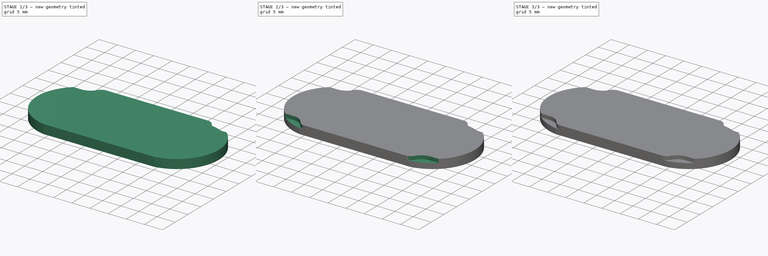
[diagram: build sequence overview — one tinted view per stage of 3, left to right]
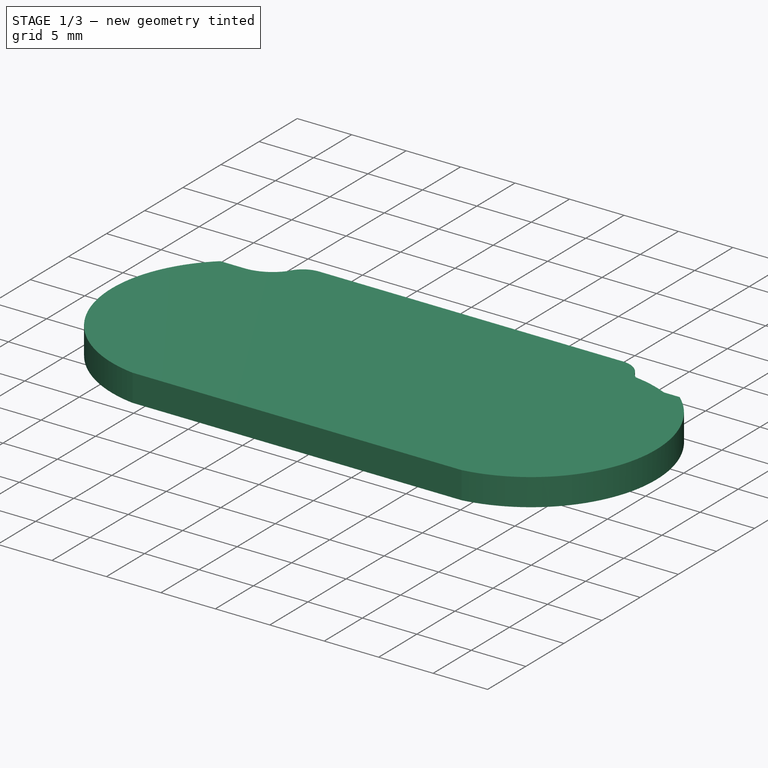
[diagram: stage 1 of 3 — iso view after this stage's code; geometry added in this stage tinted green]
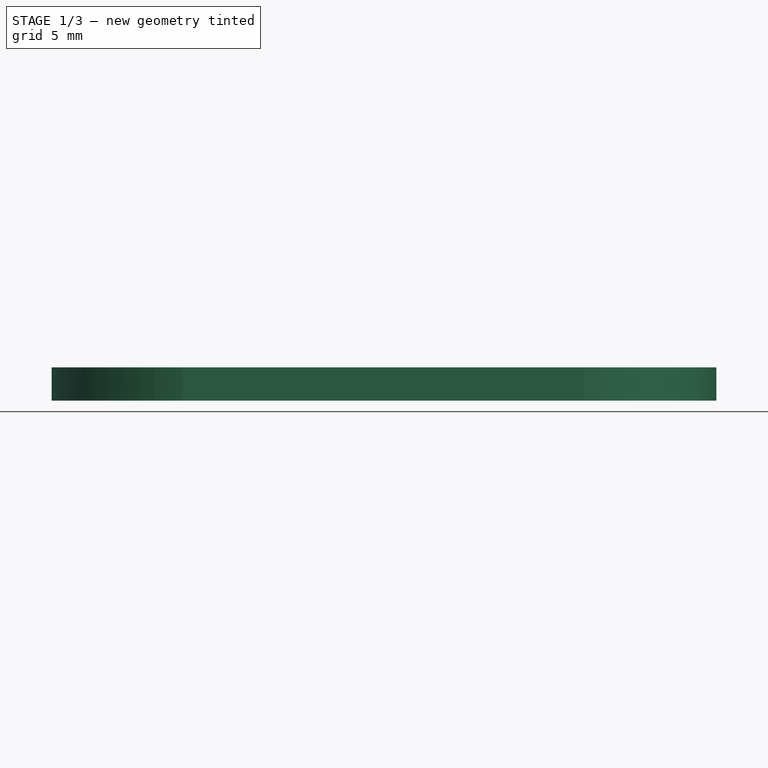
[diagram: stage 1 of 3 — front view after this stage's code; geometry added in this stage tinted green]
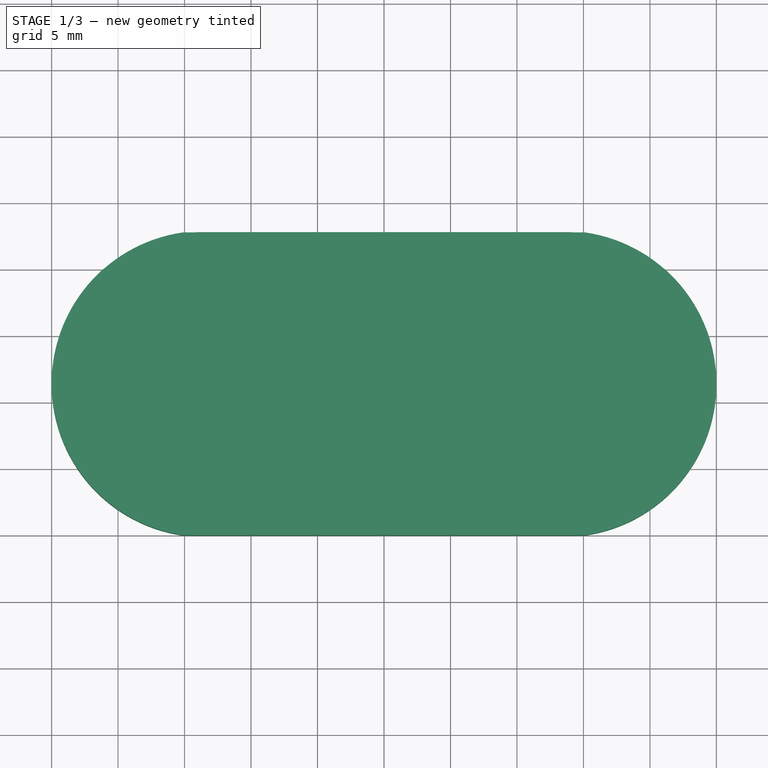
[diagram: stage 1 of 3 — top view after this stage's code; geometry added in this stage tinted green]
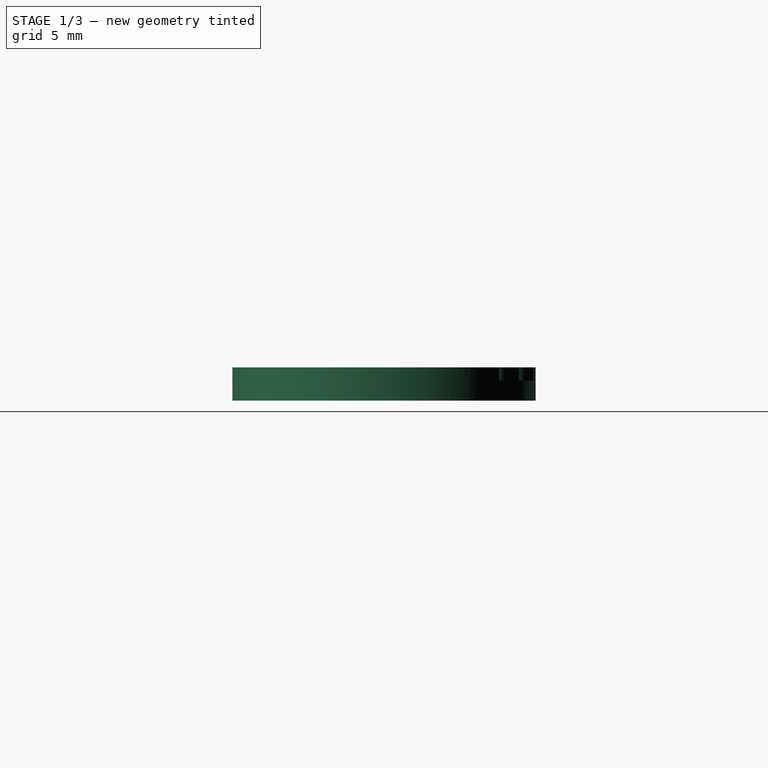
[diagram: stage 1 of 3 — right view after this stage's code; geometry added in this stage tinted green]
FCSTD DOCUMENT  (FreeCAD 0.20R29177 +426 (Git))
Label: Vita Icon
License: All rights reserved
LicenseURL: http://en.wikipedia.org/wiki/All_rights_reserved
objects: Sketcher::SketchObject×6, PartDesign::Pocket×5, PartDesign::Body×2, PartDesign::Pad×1, App::Part×1, PartDesign::FeatureBase×1
note: 21 computed .brp shape members not serialized (recipe doc carries the construction recipe); baked Part::Feature solids carry a one-line shape summary decoded from their .brp

FEATURE [Sketcher::SketchObject] Sketch
  FullyConstrained = true
  MapMode = 5
  Support = -> [XY_Plane]
  sketch-geometry (10):
    g0: LineSegment StartX=0 StartY=0 StartZ=0 EndX=50 EndY=0 EndZ=0
    g1: LineSegment StartX=50 StartY=0 StartZ=0 EndX=50 EndY=22.8 EndZ=0
    g2: LineSegment StartX=50 StartY=22.8 StartZ=0 EndX=0 EndY=22.8 EndZ=0
    g3: LineSegment StartX=0 StartY=22.8 StartZ=0 EndX=0 EndY=0 EndZ=0
    g4: ArcOfCircle CenterX=38.4847 CenterY=11.4 CenterZ=0 NormalX=0 NormalY=0 NormalZ=1 AngleXU=0 Radius=11.5153 StartAngle=4.854 EndAngle=7.71237
    g5: ArcOfCircle CenterX=11.5153 CenterY=11.4 CenterZ=0 NormalX=0 NormalY=0 NormalZ=1 AngleXU=0 Radius=11.5153 StartAngle=1.71241 EndAngle=4.57078
    g6: LineSegment StartX=9.89 StartY=22.8 StartZ=0 EndX=40.11 EndY=22.8 EndZ=0
    g7: LineSegment StartX=40.11 StartY=0 StartZ=0 EndX=9.89 EndY=0 EndZ=0
    g8: LineSegment StartX=9.89 StartY=22.8 StartZ=0 EndX=9.89 EndY=0 EndZ=0
    g9: LineSegment StartX=40.11 StartY=0 StartZ=0 EndX=40.11 EndY=22.8 EndZ=0
  constraints (29):
    c: Coincident(g0,g1)
    c: Coincident(g1,g2)
    c: Coincident(g2,g3)
    c: Coincident(g3,g0)
    c: Horizontal(g0)
    c: Horizontal(g2)
    c: Vertical(g1)
    c: Vertical(g3)
    c: Coincident(g0,g-1)
    c: Distance(g0) = 50
    c: Distance(g1) = 22.8
    c: PointOnObject(g4,g2)
    c: PointOnObject(g4,g0)
    c: Tangent(g4,g1)
    c: PointOnObject(g5,g2)
    c: PointOnObject(g5,g0)
    c: Tangent(g5,g3)
    c: Coincident(g6,g5)
    c: Coincident(g6,g4)
    c: Coincident(g7,g4)
    c: Coincident(g7,g5)
    c: Equal(g5,g4)
    c: Distance(g6) = 30.22
    c: Equal(g6,g7)
    c: Coincident(g8,g5)
    c: Coincident(g8,g5)
    c: Coincident(g9,g4)
    c: Coincident(g9,g4)
    c: Vertical(g8)
FEATURE [PartDesign::Pad] Pad
  Direction = (0,0,1)
  Length = 2.5
  Length2 = 10
  Profile = -> Sketch
  ReferenceAxis = -> Sketch [N_Axis]
  Type = 0
FEATURE [Sketcher::SketchObject] Sketch002
  ExternalGeometry = -> [Pad]
  FullyConstrained = true
  MapMode = 5
  Placement = pos=(0,0,2.5) rot=(0,0,1;0rad)
  Support = -> [Pad]
  sketch-geometry (20):
    g0: LineSegment StartX=9.89 StartY=22.8 StartZ=0 EndX=0 EndY=22.8 EndZ=0
    g1: LineSegment StartX=0 StartY=22.8 StartZ=0 EndX=0 EndY=0 EndZ=0
    g2: LineSegment StartX=0 StartY=0 StartZ=0 EndX=9.89 EndY=0 EndZ=0
    g3: LineSegment StartX=40.11 StartY=0 StartZ=0 EndX=50 EndY=0 EndZ=0
    g4: LineSegment StartX=50 StartY=0 StartZ=0 EndX=50 EndY=22.8 EndZ=0
    g5: LineSegment StartX=40.11 StartY=22.8 StartZ=0 EndX=50 EndY=22.8 EndZ=0
    g6: LineSegment StartX=46.0826 StartY=22.8 StartZ=0 EndX=46.0826 EndY=20.053 EndZ=0
    g7: LineSegment StartX=46.0826 StartY=20.053 StartZ=0 EndX=43.8846 EndY=20.053 EndZ=0
    g8: LineSegment StartX=43.8846 StartY=20.053 StartZ=0 EndX=38.9396 EndY=20.053 EndZ=0
    g9: LineSegment StartX=40.11 StartY=22.8 StartZ=0 EndX=38.9396 EndY=22.8 EndZ=0
    g10: LineSegment StartX=38.9396 StartY=22.8 StartZ=0 EndX=38.9396 EndY=20.053 EndZ=0
    g11: ArcOfCircle CenterX=43.8846 CenterY=23.786 CenterZ=0 NormalX=0 NormalY=0 NormalZ=1 AngleXU=0 Radius=3.733 StartAngle=3.78606 EndAngle=4.71239
    g12: ArcOfCircle CenterX=38.9396 CenterY=20.642 CenterZ=0 NormalX=0 NormalY=0 NormalZ=1 AngleXU=0 Radius=2.158 StartAngle=0.430874 EndAngle=1.5708
    g13: LineSegment StartX=38.9396 StartY=22.8 StartZ=0 EndX=46.0826 EndY=22.8 EndZ=0
    g14: LineSegment StartX=9.89 StartY=22.8 StartZ=0 EndX=11.0604 EndY=22.8 EndZ=0
    g15: LineSegment StartX=11.0604 StartY=22.8 StartZ=0 EndX=3.91744 EndY=22.8 EndZ=0
    g16: LineSegment StartX=3.91744 StartY=22.8 StartZ=0 EndX=3.91744 EndY=20.053 EndZ=0
    g17: LineSegment StartX=3.91744 StartY=20.053 StartZ=0 EndX=6.11544 EndY=20.053 EndZ=0
    g18: ArcOfCircle CenterX=6.11544 CenterY=23.786 CenterZ=0 NormalX=0 NormalY=0 NormalZ=1 AngleXU=0 Radius=3.733 StartAngle=4.71239 EndAngle=5.63872
    g19: ArcOfCircle CenterX=11.0604 CenterY=20.642 CenterZ=0 NormalX=0 NormalY=0 NormalZ=1 AngleXU=0 Radius=2.158 StartAngle=1.5708 EndAngle=2.71072
  constraints (54):
    c: Coincident(g0,g-3)
    c: Horizontal(g0)
    c: Coincident(g1,g0)
    c: Coincident(g1,g-1)
    c: Tangent(g1,g-2)
    c: Coincident(g2,g1)
    c: Coincident(g2,g-3)
    c: Coincident(g3,g-4)
    c: PointOnObject(g3,g-1)
    c: Coincident(g4,g3)
    c: Vertical(g4)
    c: Coincident(g5,g-4)
    c: Coincident(g5,g4)
    c: Horizontal(g5)
    c: Tangent(g-4,g4)
    c: PointOnObject(g6,g5)
    c: PointOnObject(g6,g-4)
    c: Vertical(g6)
    c: Distance(g6) = 2.747
    c: Coincident(g7,g6)
    c: Horizontal(g7)
    c: Distance(g7) = 2.198
    c: Coincident(g8,g7)
    c: Horizontal(g8)
    c: Distance(g8) = 4.945
    c: Coincident(g9,g5)
    c: Horizontal(g9)
    c: Coincident(g10,g9)
    c: Coincident(g10,g8)
    c: Vertical(g10)
    c: Tangent(g12,g9) = -1.5708
    c: Tangent(g11,g7) = 1.5708
    c: Radius(g11) = 3.733
    c: Radius(g12) = 2.158
    c: Coincident(g12,g11)
    c: Coincident(g13,g12)
    c: Coincident(g13,g6)
    c: Coincident(g14,g0)
    c: Horizontal(g14)
    c: Coincident(g15,g14)
    c: PointOnObject(g15,g0)
    c: Coincident(g16,g15)
    c: PointOnObject(g16,g-3)
    c: Vertical(g16)
    c: Coincident(g17,g16)
    c: Horizontal(g17)
    c: Coincident(g19,g18)
    c: Tangent(g19,g15) = -1.5708
    c: Tangent(g18,g17) = -1.5708
    c: Equal(g16,g6)
    c: Equal(g7,g17)
    c: Equal(g15,g13)
    c: Equal(g12,g19)
    c: Equal(g18,g11)
FEATURE [PartDesign::Pocket] Pocket
  BaseFeature = -> Pad
  Direction = (0,0,-1)
  Length = 1
  Length2 = 5
  Profile = -> Sketch002
  ReferenceAxis = -> Sketch002 [N_Axis]
  Type = 0
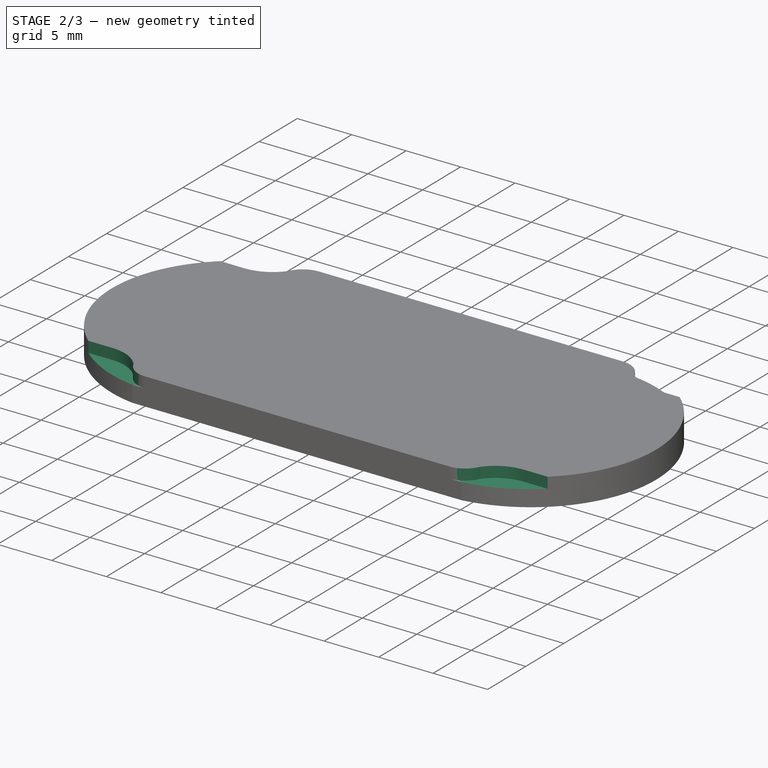
[diagram: stage 2 of 3 — iso view after this stage's code; geometry added in this stage tinted green]
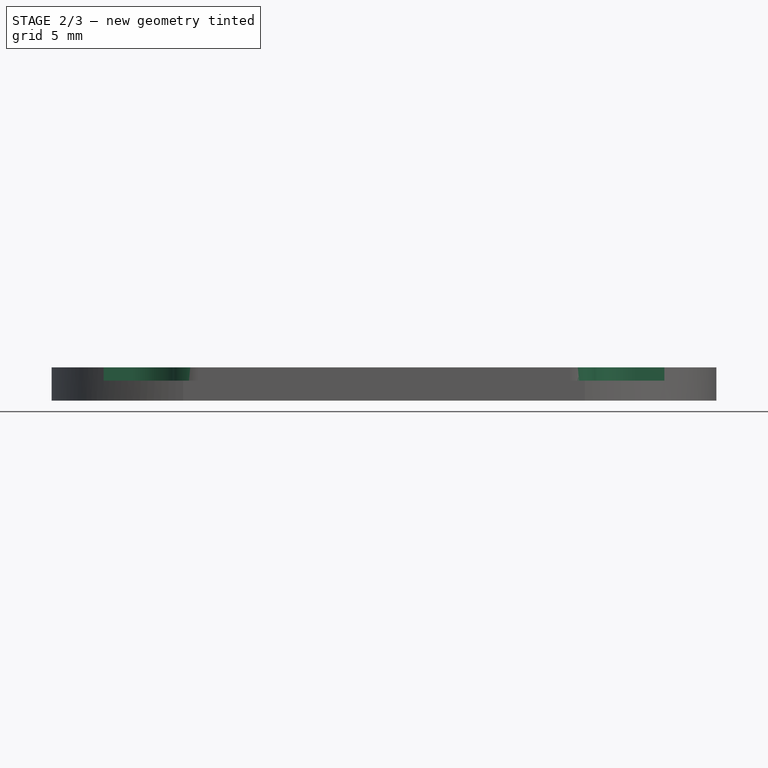
[diagram: stage 2 of 3 — front view after this stage's code; geometry added in this stage tinted green]
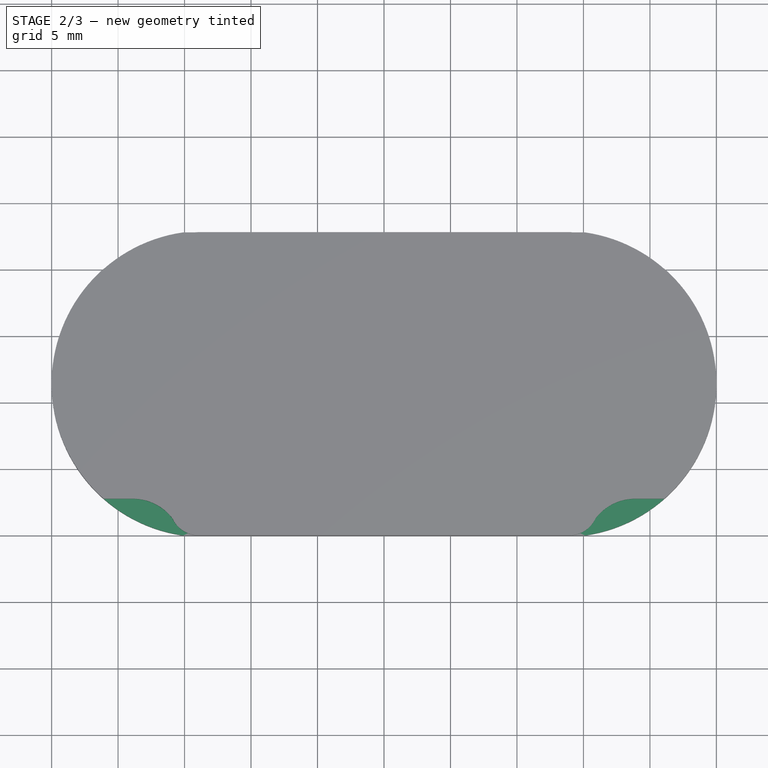
[diagram: stage 2 of 3 — top view after this stage's code; geometry added in this stage tinted green]
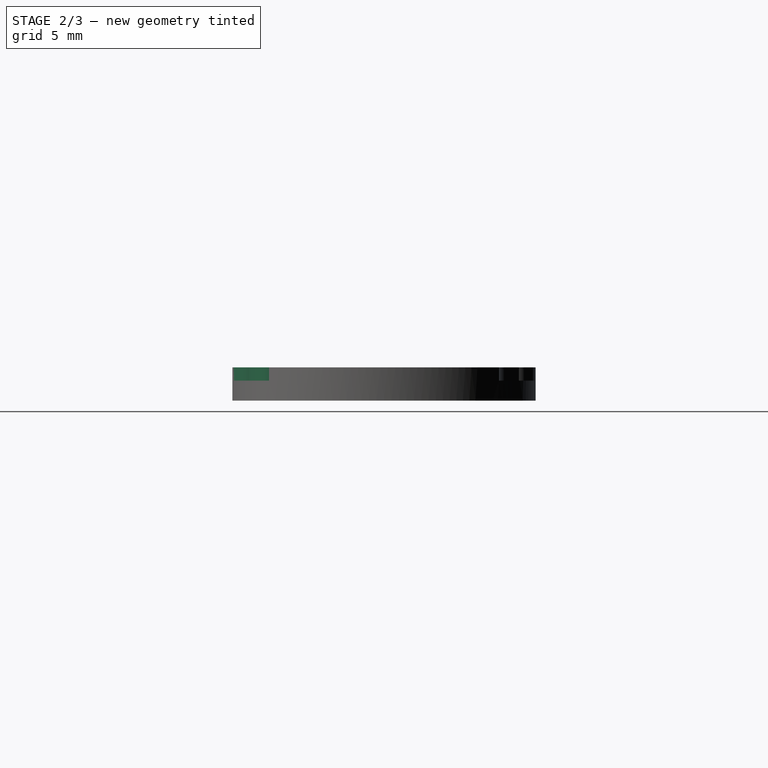
[diagram: stage 2 of 3 — right view after this stage's code; geometry added in this stage tinted green]
FEATURE [Sketcher::SketchObject] Sketch003
  ExternalGeometry = -> [Pocket]
  FullyConstrained = true
  MapMode = 5
  Placement = pos=(0,0,2.5) rot=(0,0,1;0rad)
  Support = -> [Pocket]
  sketch-geometry (18):
    g0: LineSegment StartX=0 StartY=0 StartZ=0 EndX=0 EndY=11.4 EndZ=0
    g1: LineSegment StartX=0 StartY=0 StartZ=0 EndX=9.89 EndY=-1.8e-15 EndZ=0
    g2: LineSegment StartX=50 StartY=11.4 StartZ=0 EndX=50 EndY=0 EndZ=0
    g3: LineSegment StartX=50 StartY=0 StartZ=0 EndX=40.11 EndY=0 EndZ=0
    g4: LineSegment StartX=3.91744 StartY=-7e-16 StartZ=0 EndX=3.91744 EndY=2.747 EndZ=0
    g5: LineSegment StartX=46.0826 StartY=0 StartZ=0 EndX=46.0826 EndY=2.747 EndZ=0
    g6: LineSegment StartX=46.0826 StartY=2.747 StartZ=0 EndX=38.9396 EndY=2.747 EndZ=0
    g7: LineSegment StartX=38.9396 StartY=2.747 StartZ=0 EndX=38.9396 EndY=0 EndZ=0
    g8: LineSegment StartX=38.9396 StartY=0 StartZ=0 EndX=46.0826 EndY=0 EndZ=0
    g9: LineSegment StartX=3.91744 StartY=-7e-16 StartZ=0 EndX=11.0604 EndY=0 EndZ=0
    g10: LineSegment StartX=3.91744 StartY=2.747 StartZ=0 EndX=11.0604 EndY=2.747 EndZ=0
    g11: LineSegment StartX=11.0604 StartY=2.747 StartZ=0 EndX=11.0604 EndY=0 EndZ=0
    g12: LineSegment StartX=46.0826 StartY=2.747 StartZ=0 EndX=43.8846 EndY=2.747 EndZ=0
    g13: ArcOfCircle CenterX=43.8846 CenterY=-0.986 CenterZ=0 NormalX=0 NormalY=0 NormalZ=1 AngleXU=0 Radius=3.733 StartAngle=1.5708 EndAngle=2.49787
    g14: ArcOfCircle CenterX=38.9396 CenterY=2.157 CenterZ=0 NormalX=0 NormalY=0 NormalZ=1 AngleXU=0 Radius=2.157 StartAngle=4.71239 EndAngle=5.85148
    g15: LineSegment StartX=3.91744 StartY=2.747 StartZ=0 EndX=6.11544 EndY=2.747 EndZ=0
    g16: ArcOfCircle CenterX=6.11544 CenterY=-0.986 CenterZ=0 NormalX=0 NormalY=0 NormalZ=1 AngleXU=0 Radius=3.733 StartAngle=0.643727 EndAngle=1.5708
    g17: ArcOfCircle CenterX=11.0604 CenterY=2.157 CenterZ=0 NormalX=0 NormalY=0 NormalZ=1 AngleXU=0 Radius=2.157 StartAngle=3.57329 EndAngle=4.71239
  constraints (50):
    c: Coincident(g0,g-1)
    c: PointOnObject(g0,g-3)
    c: Vertical(g0)
    c: Coincident(g1,g0)
    c: Coincident(g1,g-3)
    c: PointOnObject(g2,g-1)
    c: Vertical(g2)
    c: Coincident(g3,g2)
    c: Coincident(g3,g-4)
    c: Tangent(g2,g-4) = 1.5708
    c: PointOnObject(g4,g1)
    c: PointOnObject(g4,g-3)
    c: Vertical(g4)
    c: PointOnObject(g5,g3)
    c: PointOnObject(g5,g-4)
    c: Vertical(g5)
    c: Distance(g5) = 2.747
    c: Equal(g4,g5)
    c: Coincident(g6,g5)
    c: Horizontal(g6)
    c: Distance(g6) = 7.143
    c: Coincident(g7,g6)
    c: PointOnObject(g7,g-1)
    c: Vertical(g7)
    c: Coincident(g8,g7)
    c: Coincident(g8,g5)
    c: Coincident(g9,g4)
    c: PointOnObject(g9,g-1)
    c: Coincident(g10,g4)
    c: Horizontal(g10)
    c: Coincident(g11,g10)
    c: Coincident(g11,g9)
    c: Vertical(g11)
    c: Equal(g10,g6)
    c: Coincident(g12,g5)
    c: PointOnObject(g12,g6)
    c: Coincident(g14,g13)
    c: Distance(g12) = 2.198
    c: Radius(g13) = 3.733
    c: Radius(g14) = 2.157
    c: Tangent(g14,g8) = -1.5708
    c: Tangent(g13,g12) = -1.5708
    c: Coincident(g15,g4)
    c: PointOnObject(g15,g10)
    c: Coincident(g17,g16)
    c: Tangent(g16,g15) = 1.5708
    c: Tangent(g17,g9) = -1.5708
    c: Equal(g15,g12)
    c: Equal(g13,g16)
    c: Equal(g17,g14)
FEATURE [PartDesign::Pocket] Pocket001
  BaseFeature = -> Pocket
  Direction = (0,0,-1)
  Length = 1
  Length2 = 5
  Profile = -> Sketch003
  ReferenceAxis = -> Sketch003 [N_Axis]
  Type = 0
FEATURE [Sketcher::SketchObject] Sketch004
  ExternalGeometry = -> [Pocket001]
  FullyConstrained = true
  MapMode = 5
  Placement = pos=(0,0,1.5) rot=(0,0,1;0rad)
  Support = -> [Pocket001]
  sketch-geometry (18):
    g0: ArcOfCircle CenterX=11.5153 CenterY=11.4 CenterZ=0 NormalX=0 NormalY=0 NormalZ=1 AngleXU=0 Radius=10.5153 StartAngle=4.10809 EndAngle=4.48559
    g1: LineSegment StartX=5.54061 StartY=2.747 StartZ=0 EndX=4.97242 EndY=1.9241 EndZ=0
    g2: LineSegment StartX=9.15081 StartY=1.15401 StartZ=0 EndX=8.92595 EndY=0.179619 EndZ=0
    g3: LineSegment StartX=5.54061 StartY=2.747 StartZ=0 EndX=6.11544 EndY=2.747 EndZ=0
    g4: ArcOfCircle CenterX=11.0604 CenterY=2.157 CenterZ=0 NormalX=0 NormalY=0 NormalZ=1 AngleXU=0 Radius=2.157 StartAngle=3.57329 EndAngle=3.62522
    g5: ArcOfCircle CenterX=6.11544 CenterY=-0.986 CenterZ=0 NormalX=0 NormalY=0 NormalZ=1 AngleXU=0 Radius=3.733 StartAngle=0.643727 EndAngle=1.5708
    g6: LineSegment StartX=7.27032 StartY=1.77964 StartZ=0 EndX=6.86663 EndY=0.864745 EndZ=0
    g7: LineSegment StartX=5.54061 StartY=2.747 StartZ=0 EndX=9.15081 EndY=1.15401 EndZ=0
    g8: LineSegment StartX=7.27032 StartY=1.77964 StartZ=0 EndX=7.34571 EndY=1.95051 EndZ=0
    g9: ArcOfCircle CenterX=38.4847 CenterY=11.4 CenterZ=0 NormalX=0 NormalY=0 NormalZ=1 AngleXU=0 Radius=10.5153 StartAngle=4.93919 EndAngle=5.31669
    g10: LineSegment StartX=40.8492 StartY=1.15401 StartZ=0 EndX=41.074 EndY=0.179619 EndZ=0
    g11: LineSegment StartX=44.4594 StartY=2.747 StartZ=0 EndX=45.0276 EndY=1.9241 EndZ=0
    g12: LineSegment StartX=40.8492 StartY=1.15401 StartZ=0 EndX=44.4594 EndY=2.747 EndZ=0
    g13: LineSegment StartX=42.6543 StartY=1.95051 StartZ=0 EndX=42.7297 EndY=1.77964 EndZ=0
    g14: LineSegment StartX=42.7297 StartY=1.77964 StartZ=0 EndX=43.1334 EndY=0.864745 EndZ=0
    g15: ArcOfCircle CenterX=38.9396 CenterY=2.157 CenterZ=0 NormalX=0 NormalY=0 NormalZ=1 AngleXU=0 Radius=2.157 StartAngle=5.79956 EndAngle=5.85148
    g16: ArcOfCircle CenterX=43.8846 CenterY=-0.986 CenterZ=0 NormalX=0 NormalY=0 NormalZ=1 AngleXU=0 Radius=3.733 StartAngle=1.5708 EndAngle=2.49787
    g17: LineSegment StartX=43.8846 StartY=2.747 StartZ=0 EndX=44.4594 EndY=2.747 EndZ=0
  constraints (54):
    c: Coincident(g1,g0)
    c: PointOnObject(g1,g-3)
    c: Coincident(g2,g0)
    c: PointOnObject(g2,g-3)
    c: Perpendicular(g-3,g1)
    c: Perpendicular(g-3,g2)
    c: Distance(g2) = 1
    c: Equal(g1,g2)
    c: PointOnObject(g0,g-6)
    c: PointOnObject(g0,g-4)
    c: Coincident(g3,g0)
    c: Coincident(g3,g-5)
    c: Coincident(g4,g-6)
    c: Coincident(g4,g0)
    c: Coincident(g5,g4)
    c: Coincident(g5,g3)
    c: Equal(g5,g-5)
    c: Equal(g4,g-6)
    c: PointOnObject(g6,g0)
    c: PointOnObject(g6,g-3)
    c: Coincident(g7,g0)
    c: Coincident(g7,g0)
    c: Coincident(g8,g6)
    c: Perpendicular(g8,g7)
    c: Perpendicular(g0,g6)
    c: Symmetric(g0,g0,g8)
    c: Distance(g6) = 1
    c: PointOnObject(g9,g-7)
    c: PointOnObject(g9,g-9)
    c: Coincident(g10,g9)
    c: PointOnObject(g10,g-10)
    c: Coincident(g11,g9)
    c: PointOnObject(g11,g-10)
    c: Perpendicular(g-10,g10)
    c: Perpendicular(g-10,g11)
    c: Coincident(g12,g9)
    c: Coincident(g12,g9)
    c: PointOnObject(g13,g9)
    c: Coincident(g14,g13)
    c: PointOnObject(g14,g-10)
    c: Parallel(g13,g14)
    c: Perpendicular(g9,g14)
    c: Perpendicular(g-10,g14)
    c: Symmetric(g9,g9,g13)
    c: Distance(g10) = 1
    c: Equal(g10,g14)
    c: Coincident(g15,g9)
    c: Coincident(g15,g-8)
    c: Coincident(g16,g15)
    c: Coincident(g16,g-9)
    c: Coincident(g17,g16)
    c: Coincident(g17,g9)
    c: Equal(g-8,g16)
    c: Equal(g-7,g15)
FEATURE [PartDesign::Pocket] Pocket002
  BaseFeature = -> Pocket001
  Direction = (0,0,-1)
  Length = 5
  Length2 = 5
  Profile = -> Sketch004
  ReferenceAxis = -> Sketch004 [N_Axis]
  Type = 0
FEATURE [PartDesign::Body] Body  label="Vita"
  Group = -> [Sketch,Pad,Sketch002,Pocket,Sketch003,Pocket001,Sketch004,Pocket002,Sketch005,Pocket003,Sketch006,Pocket004]
  Origin = -> Origin
  Tip = -> Pocket004
FEATURE [App::Part] Part  label="Key-"
  Group = -> [Body]
  Origin = -> Origin001
FEATURE [PartDesign::FeatureBase] Clone
  BaseFeature = -> Pocket001
FEATURE [PartDesign::Body] Body001
  Group = -> [Clone]
  Origin = -> Origin002
  Tip = -> Clone
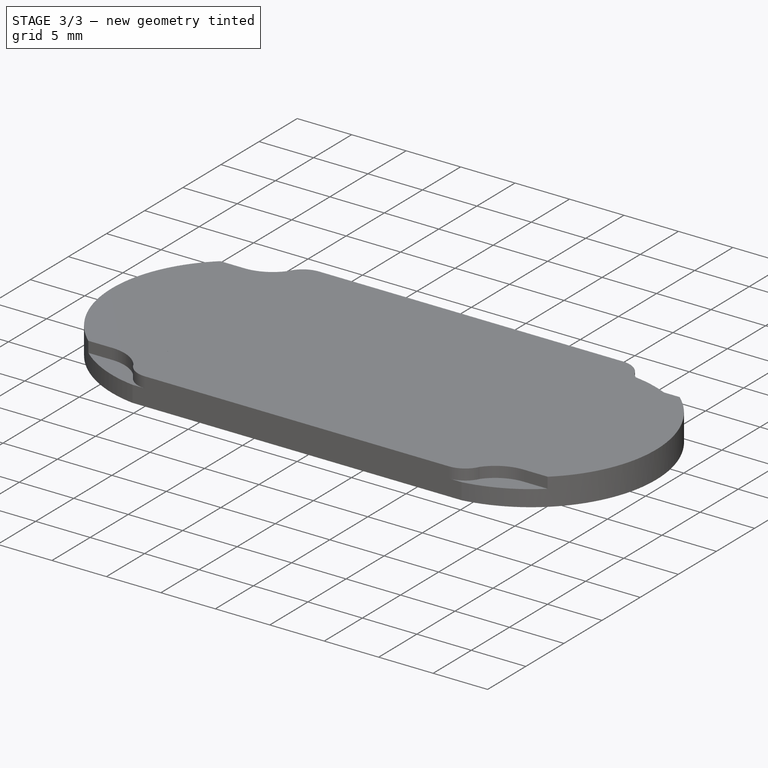
[diagram: stage 3 of 3 — iso view after this stage's code; geometry added in this stage tinted green]
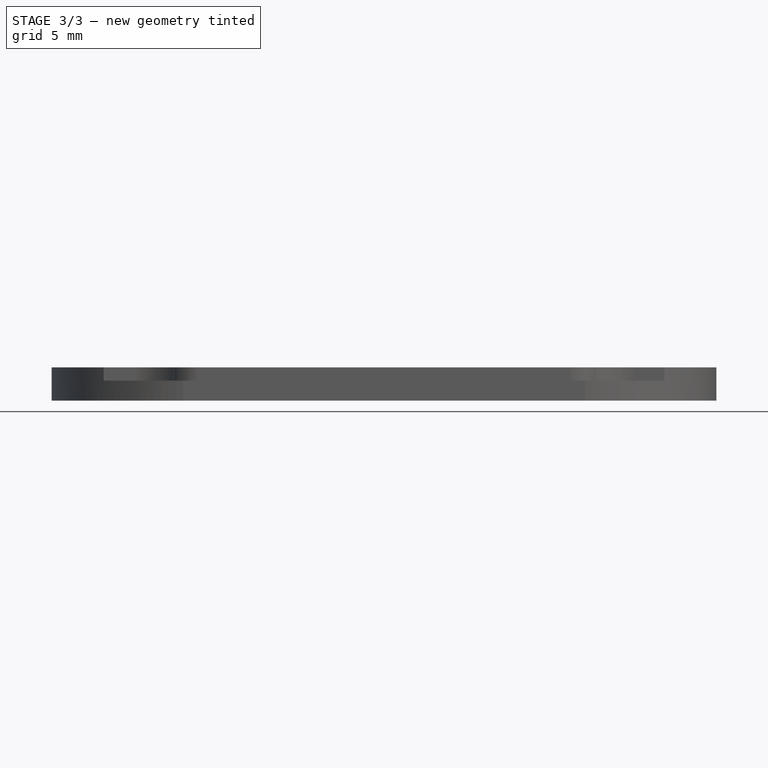
[diagram: stage 3 of 3 — front view after this stage's code; geometry added in this stage tinted green]
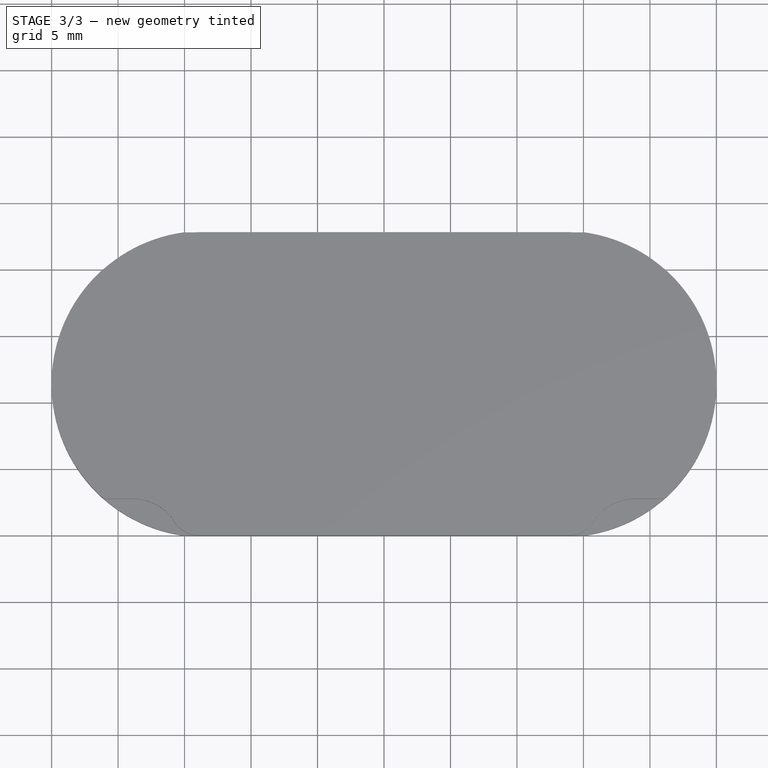
[diagram: stage 3 of 3 — top view after this stage's code; geometry added in this stage tinted green]
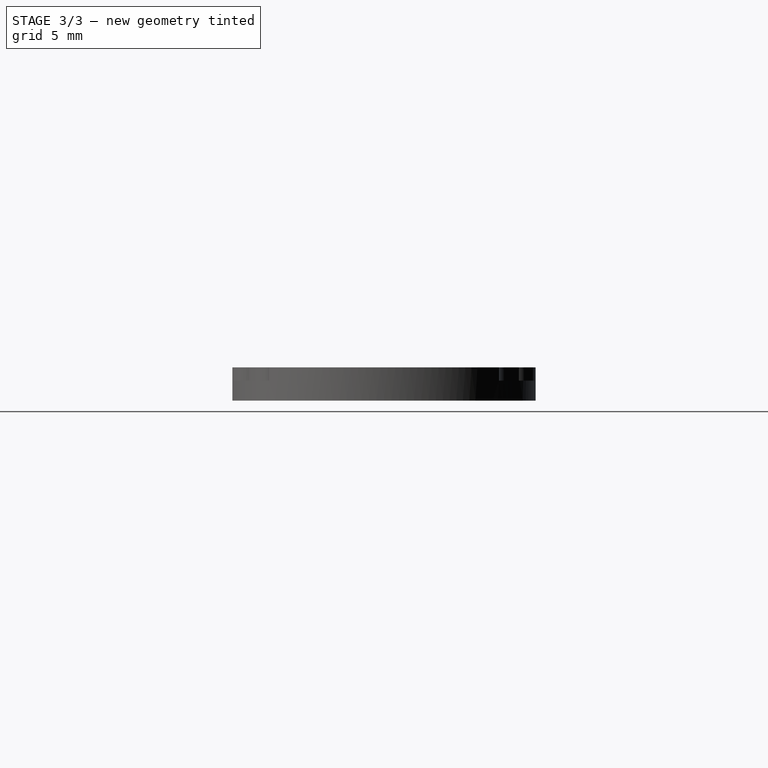
[diagram: stage 3 of 3 — right view after this stage's code; geometry added in this stage tinted green]
FEATURE [Sketcher::SketchObject] Sketch005
  ExternalGeometry = -> [Pocket002]
  FullyConstrained = true
  MapMode = 5
  Placement = pos=(0,0,2.5) rot=(0,0,1;0rad)
  Support = -> [Pocket002]
  sketch-geometry (6):
    g0: LineSegment StartX=1.2e-15 StartY=11.4 StartZ=0 EndX=5.769 EndY=11.4 EndZ=0
    g1: LineSegment StartX=5.769 StartY=11.4 StartZ=0 EndX=5.769 EndY=9.065 EndZ=0
    g2: LineSegment StartX=50 StartY=11.4 StartZ=0 EndX=44.231 EndY=11.4 EndZ=0
    g3: LineSegment StartX=44.231 StartY=11.4 StartZ=0 EndX=44.231 EndY=9.065 EndZ=0
    g4: Circle CenterX=5.769 CenterY=9.065 CenterZ=0 NormalX=0 NormalY=0 NormalZ=1 AngleXU=0 Radius=2.239
    g5: Circle CenterX=44.231 CenterY=9.065 CenterZ=0 NormalX=0 NormalY=0 NormalZ=1 AngleXU=0 Radius=2.239
  constraints (18):
    c: PointOnObject(g0,g-3)
    c: Horizontal(g0)
    c: Coincident(g1,g0)
    c: Vertical(g1)
    c: PointOnObject(g2,g-4)
    c: Horizontal(g2)
    c: Coincident(g3,g2)
    c: Vertical(g3)
    c: Perpendicular(g-3,g0)
    c: Perpendicular(g-4,g2)
    c: Distance(g0) = 5.769
    c: Equal(g0,g2)
    c: Equal(g3,g1)
    c: Distance(g3) = 2.335
    c: Coincident(g4,g1)
    c: Coincident(g5,g3)
    c: Equal(g4,g5)
    c: Diameter(g4) = 4.478
FEATURE [PartDesign::Pocket] Pocket003
  BaseFeature = -> Pocket002
  Direction = (0,0,-1)
  Length = 5
  Length2 = 5
  Profile = -> Sketch005
  ReferenceAxis = -> Sketch005 [N_Axis]
  Type = 0
FEATURE [Sketcher::SketchObject] Sketch006
  ExternalGeometry = -> [Pocket003]
  FullyConstrained = true
  MapMode = 5
  Placement = pos=(0,0,2.5) rot=(0,0,1;0rad)
  Support = -> [Pocket003]
  sketch-geometry (6):
    g0: LineSegment StartX=50 StartY=20.878 StartZ=0 EndX=50 EndY=11.4 EndZ=0
    g1: LineSegment StartX=50 StartY=20.878 StartZ=0 EndX=40.11 EndY=20.878 EndZ=0
    g2: LineSegment StartX=40.11 StartY=20.878 StartZ=0 EndX=9.89 EndY=20.878 EndZ=0
    g3: LineSegment StartX=9.89 StartY=20.878 StartZ=0 EndX=9.89 EndY=3.57 EndZ=0
    g4: LineSegment StartX=9.89 StartY=3.57 StartZ=0 EndX=40.11 EndY=3.57 EndZ=0
    g5: LineSegment StartX=40.11 StartY=3.57 StartZ=0 EndX=40.11 EndY=20.878 EndZ=0
  constraints (17):
    c: Vertical(g0)
    c: Tangent(g0,g-3) = 1.5708
    c: Distance(g0) = 9.478
    c: Coincident(g1,g0)
    c: Horizontal(g1)
    c: Distance(g1) = 9.89
    c: Coincident(g2,g3)
    c: Coincident(g3,g4)
    c: Coincident(g4,g5)
    c: Coincident(g5,g2)
    c: Horizontal(g2)
    c: Horizontal(g4)
    c: Vertical(g3)
    c: Vertical(g5)
    c: Coincident(g2,g1)
    c: Distance(g5) = 17.308
    c: Distance(g4) = 30.22
FEATURE [PartDesign::Pocket] Pocket004
  BaseFeature = -> Pocket003
  Direction = (0,0,-1)
  Length = 1
  Length2 = 5
  Profile = -> Sketch006
  ReferenceAxis = -> Sketch006 [N_Axis]
  Refine = true
  Type = 0
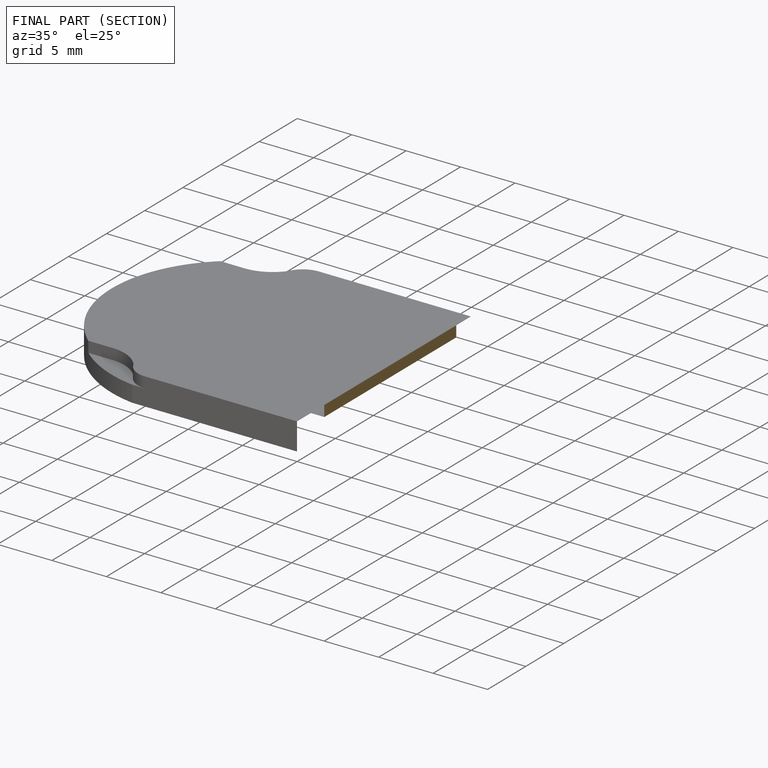
[diagram: finished part — half-section view (interior)]
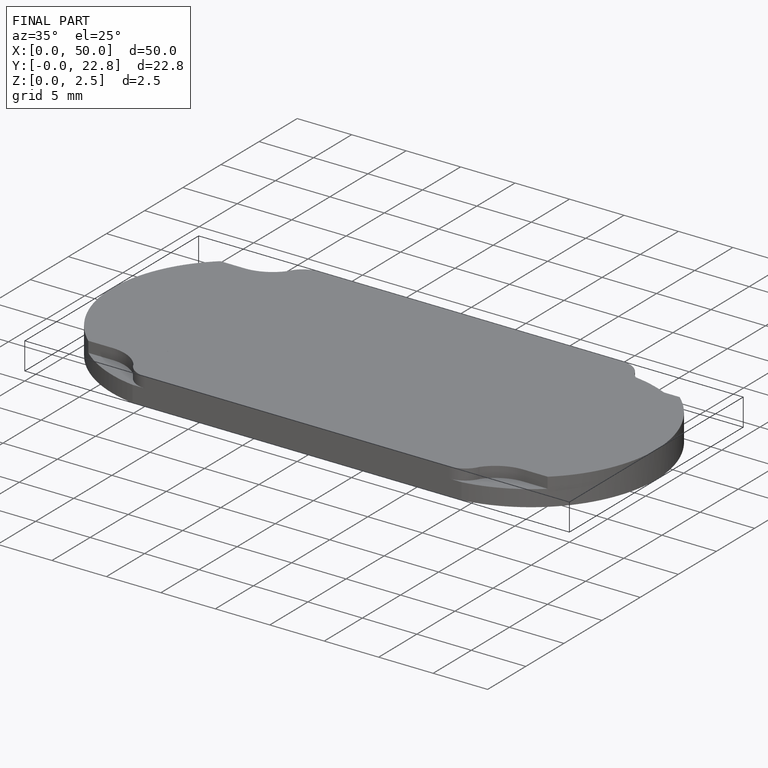
[diagram: finished part — iso view with bounding-box wireframe]
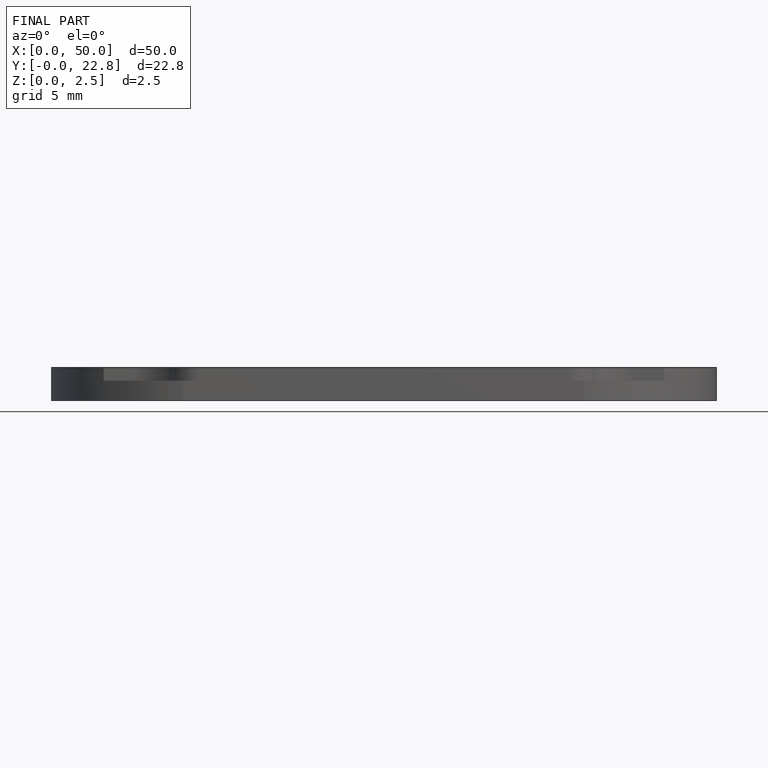
[diagram: finished part — front view with bounding-box wireframe]
